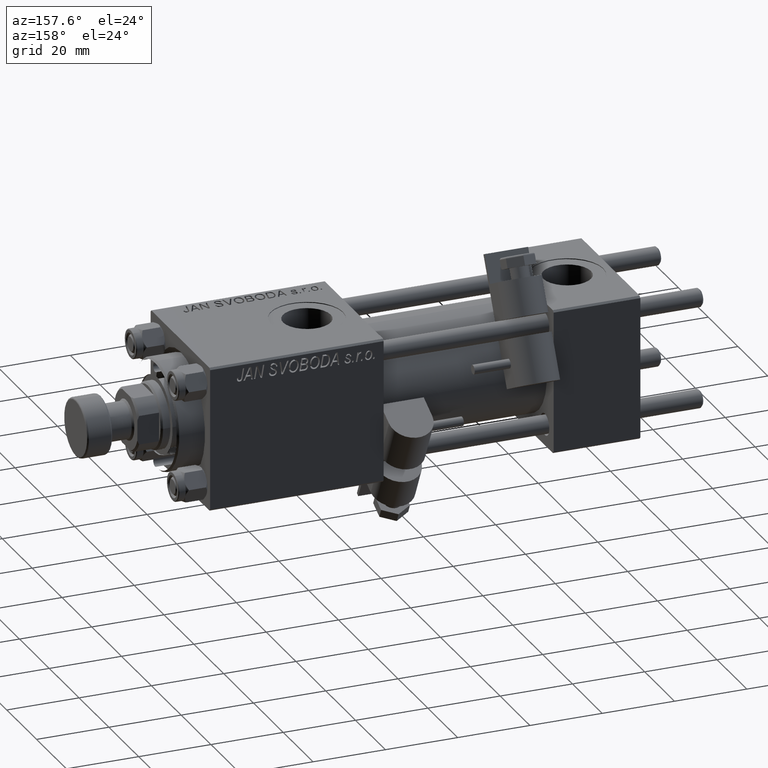
[diagram: clean part render]
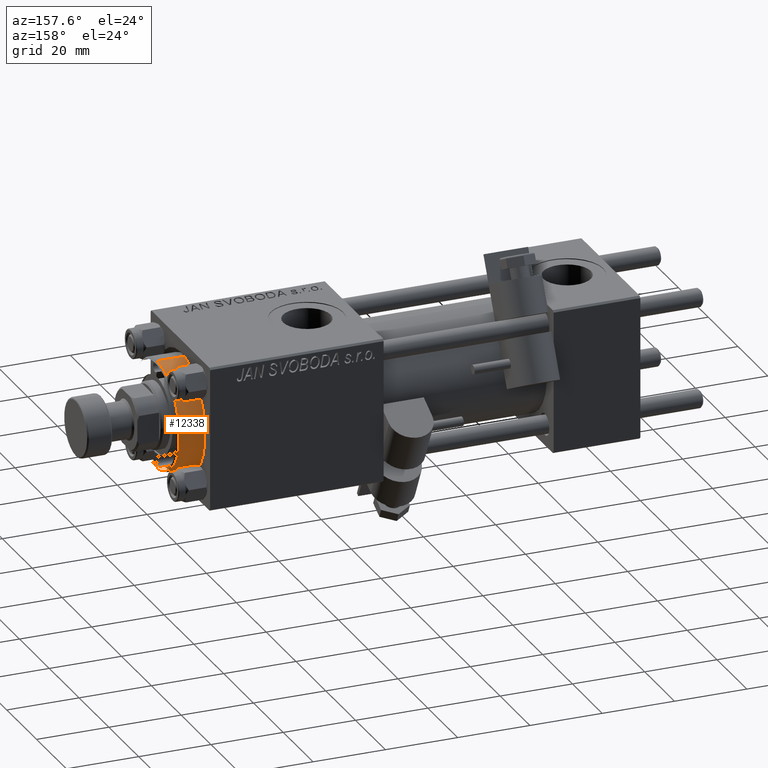
[diagram: same view with one face highlighted and labeled with its STEP entity id]
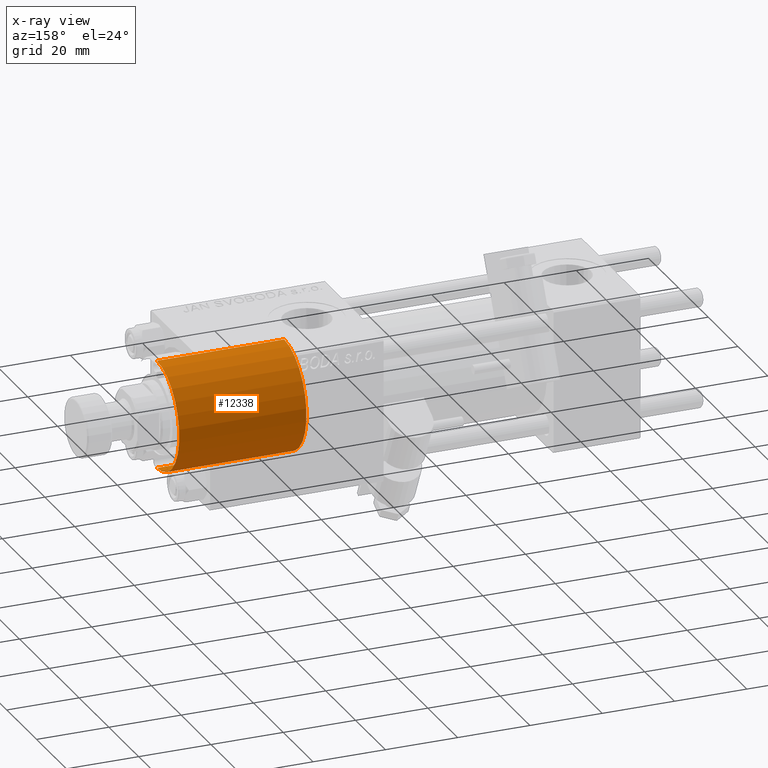
[diagram: x-ray of the same camera — body ghosted, the highlighted face saturated]
A machine part, auxiliary view. The second image highlights one B-rep face of the part: STEP entity #12338.
The next image is the same camera in x-ray: the body ghosted, the highlighted face saturated — about 0% of this face is hidden behind the body in this view.
In plain terms, the highlighted cylindrical surface (partial cylindrical patch) has radius 15 mm, axis along (-1, -0, 0).
Its self-contained STEP definition (entity closure, byte-faithful):
#105 = DIRECTION ( 'NONE',  ( -1.000000000000000000, 0.000000000000000000, 0.000000000000000000 ) ) ;
#1944 = DIRECTION ( 'NONE',  ( 0.000000000000000000, 0.000000000000000000, -1.000000000000000000 ) ) ;
#2710 = AXIS2_PLACEMENT_3D ( 'NONE', #12172, #28526, #105 ) ;
#8596 = ORIENTED_EDGE ( 'NONE', *, *, #52145, .F. ) ;
#9552 = CARTESIAN_POINT ( 'NONE',  ( -15.00000000000000000, 0.000000000000000000, 35.19999999999999574 ) ) ;
#10872 = CARTESIAN_POINT ( 'NONE',  ( 0.000000000000000000, 0.000000000000000000, 0.000000000000000000 ) ) ;
#12018 = CARTESIAN_POINT ( 'NONE',  ( 15.00000000000000000, 1.836970198721029589E-15, 0.000000000000000000 ) ) ;
#12172 = CARTESIAN_POINT ( 'NONE',  ( 0.000000000000000000, 0.000000000000000000, 28.69999999999999929 ) ) ;
#12338 = ADVANCED_FACE ( 'NONE', ( #20466 ), #20745, .T. ) ;
#13078 = AXIS2_PLACEMENT_3D ( 'NONE', #10872, #34753, #43874 ) ;
#13742 = CARTESIAN_POINT ( 'NONE',  ( 15.00000000000000000, 1.836970198721029589E-15, 28.69999999999999929 ) ) ;
#14514 = CARTESIAN_POINT ( 'NONE',  ( -15.00000000000000000, 0.000000000000000000, 0.000000000000000000 ) ) ;
#16018 = EDGE_CURVE ( 'NONE', #38386, #49893, #17358, .T. ) ;
#16873 = VECTOR ( 'NONE', #45423, 1000.000000000000000 ) ;
#17358 = CIRCLE ( 'NONE', #13078, 15.00000000000000000 ) ;
#17831 = VERTEX_POINT ( 'NONE', #9552 ) ;
#18528 = ORIENTED_EDGE ( 'NONE', *, *, #31483, .T. ) ;
#18707 = CARTESIAN_POINT ( 'NONE',  ( -15.00000000000000000, 0.000000000000000000, 28.69999999999999929 ) ) ;
#19146 = CIRCLE ( 'NONE', #52597, 15.00000000000000000 ) ;
#20466 = FACE_OUTER_BOUND ( 'NONE', #25257, .T. ) ;
#20745 = CYLINDRICAL_SURFACE ( 'NONE', #2710, 15.00000000000000000 ) ;
#21765 = LINE ( 'NONE', #13742, #16873 ) ;
#21787 = CARTESIAN_POINT ( 'NONE',  ( 0.000000000000000000, 0.000000000000000000, 35.19999999999999574 ) ) ;
#22924 = ORIENTED_EDGE ( 'NONE', *, *, #42449, .T. ) ;
#23886 = VERTEX_POINT ( 'NONE', #29558 ) ;
#25257 = EDGE_LOOP ( 'NONE', ( #18528, #22924, #28597, #8596 ) ) ;
#28526 = DIRECTION ( 'NONE',  ( -0.000000000000000000, -0.000000000000000000, -1.000000000000000000 ) ) ;
#28597 = ORIENTED_EDGE ( 'NONE', *, *, #16018, .T. ) ;
#29558 = CARTESIAN_POINT ( 'NONE',  ( 15.00000000000000000, 1.836970198721029589E-15, 35.19999999999999574 ) ) ;
#31483 = EDGE_CURVE ( 'NONE', #17831, #23886, #19146, .T. ) ;
#34753 = DIRECTION ( 'NONE',  ( 0.000000000000000000, 0.000000000000000000, 1.000000000000000000 ) ) ;
#35372 = LINE ( 'NONE', #18707, #40364 ) ;
#38386 = VERTEX_POINT ( 'NONE', #12018 ) ;
#40364 = VECTOR ( 'NONE', #47440, 1000.000000000000000 ) ;
#42449 = EDGE_CURVE ( 'NONE', #23886, #38386, #21765, .T. ) ;
#43874 = DIRECTION ( 'NONE',  ( 1.000000000000000000, 0.000000000000000000, 0.000000000000000000 ) ) ;
#45423 = DIRECTION ( 'NONE',  ( -0.000000000000000000, -0.000000000000000000, -1.000000000000000000 ) ) ;
#45972 = DIRECTION ( 'NONE',  ( 1.000000000000000000, 0.000000000000000000, 0.000000000000000000 ) ) ;
#47440 = DIRECTION ( 'NONE',  ( -0.000000000000000000, -0.000000000000000000, -1.000000000000000000 ) ) ;
#49893 = VERTEX_POINT ( 'NONE', #14514 ) ;
#52145 = EDGE_CURVE ( 'NONE', #17831, #49893, #35372, .T. ) ;
#52597 = AXIS2_PLACEMENT_3D ( 'NONE', #21787, #1944, #45972 ) ;